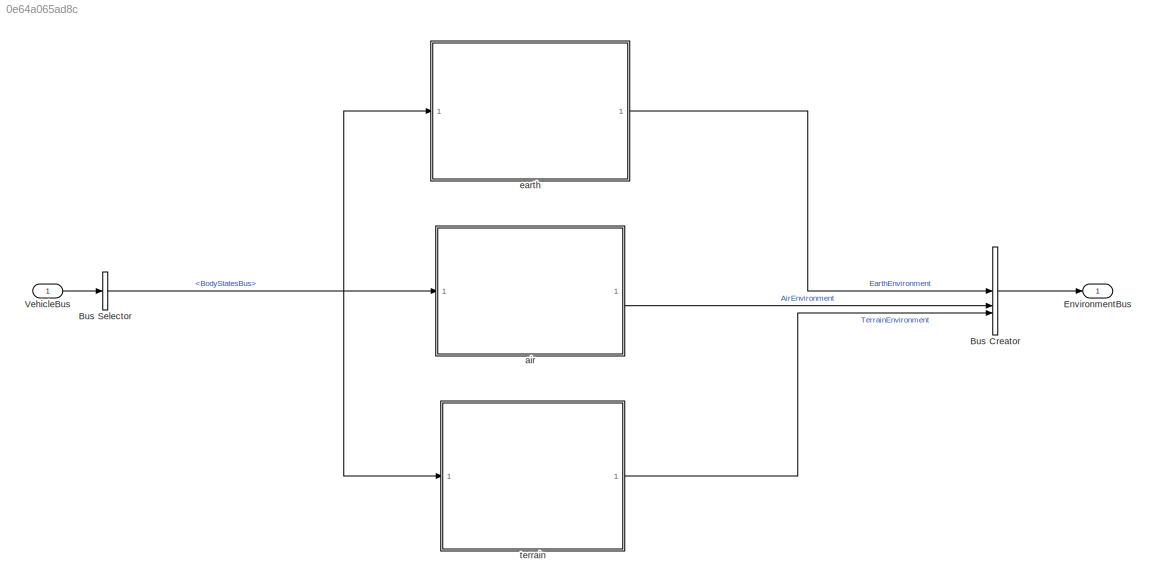
MODEL slx_0e64a065ad8c
KIND model
BLOCK [BusCreator] Bus Creator
  DisplayOption = bar
  InheritFromInputs = on
  Inputs = 3
BLOCK [BusSelector] Bus Selector
  OutputSignals = BodyStatesBus
BLOCK [Outport] EnvironmentBus
  OutDataTypeStr = Bus: EnvironmentBus
BLOCK [Inport] VehicleBus
  OutDataTypeStr = Bus: VehicleBus
BLOCK [ModelReference] air
  ModelNameDialog = Air.slx
  ModelReferenceVersion = 1.42
BLOCK [ModelReference] earth
  ModelNameDialog = Earth.slx
  ModelReferenceVersion = 1.22
BLOCK [ModelReference] terrain
  ModelNameDialog = LocalTerrain.slx
  ModelReferenceVersion = 1.6
LINE Bus Creator:1 -> EnvironmentBus:1
NET Bus Selector:1 -> air:1, earth:1, terrain:1
LINE VehicleBus:1 -> Bus Selector:1
LINE air:1 -> Bus Creator:2
LINE earth:1 -> Bus Creator:1
LINE terrain:1 -> Bus Creator:3
note: NET lines group one-source signal fan-out (src -> all destinations, sorted); 1:1 wires keep LINE
